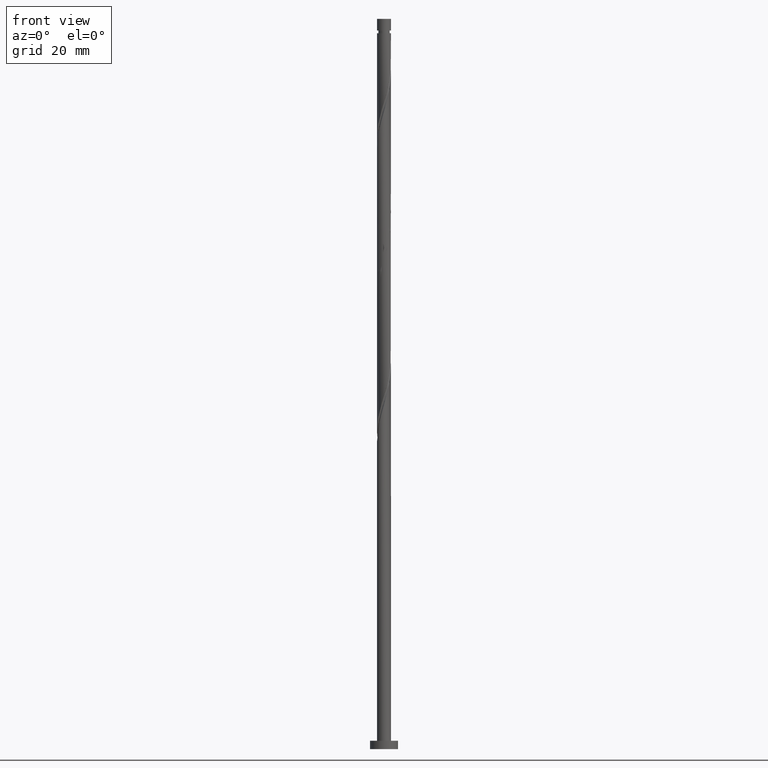
[diagram: clean part render]
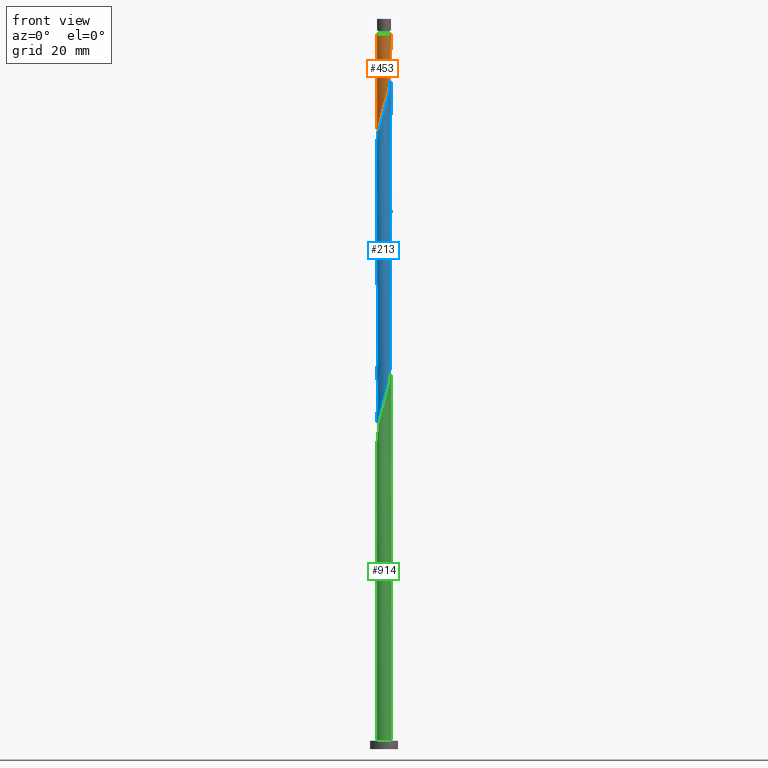
[diagram: same view with three faces highlighted in distinct colors, each labeled with its STEP entity id]
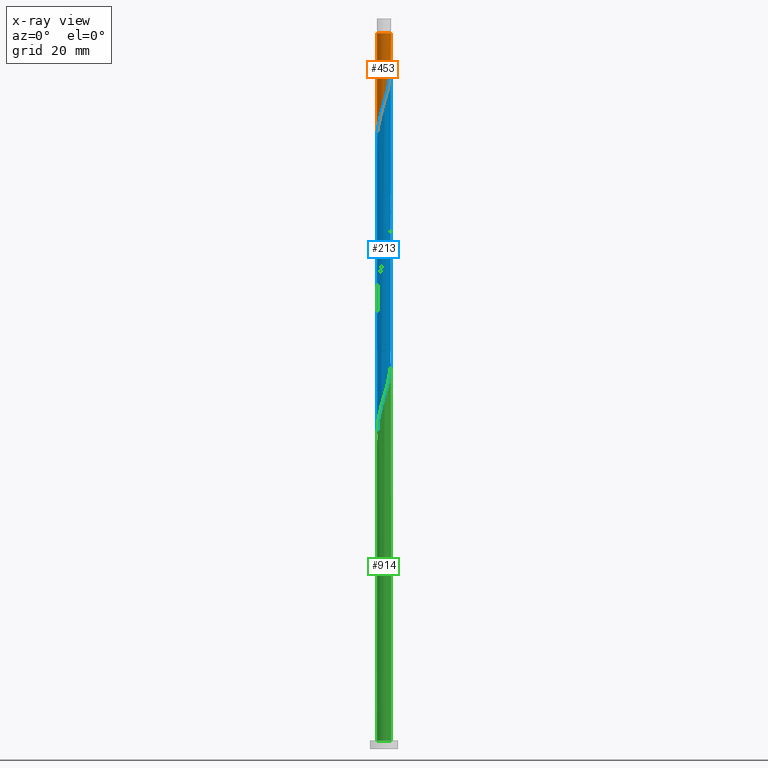
[diagram: x-ray of the same camera — body ghosted, the three highlighted faces saturated]
A machine part, front view with three faces highlighted in distinct colors.
The next image is the same camera in x-ray (body ghosted, the three faces saturated) — at least one of them is partly hidden behind the body in this view.
Their STEP definitions:

[orange] entity #453 — the highlighted cylindrical surface (edge-blend (fillet) strip) has radius 2.5 mm, axis along (-0, -0, -1).
#44 = CARTESIAN_POINT ( 'NONE',  ( 2.500000000000000000, 3.061616997868383141E-16, 261.3000000000000114 ) ) ;
#51 = CARTESIAN_POINT ( 'NONE',  ( 1.389366476707183162, -2.097380685417673529, 236.4484959595072837 ) ) ;
#62 = CARTESIAN_POINT ( 'NONE',  ( -0.7735424213085835277, -2.393945920148759843, 228.9484959595073121 ) ) ;
#65 = DIRECTION ( 'NONE',  ( -0.000000000000000000, -0.000000000000000000, -1.000000000000000000 ) ) ;
#81 = CARTESIAN_POINT ( 'NONE',  ( 1.821243267372625763, -1.735631846680257828, 238.3234959595072837 ) ) ;
#91 = CARTESIAN_POINT ( 'NONE',  ( -2.353958098689209688, -0.8878210494104750161, 221.4484959595073690 ) ) ;
#121 = CARTESIAN_POINT ( 'NONE',  ( -2.097380685417673085, -1.389366476707183162, 223.3234959595073121 ) ) ;
#178 = CARTESIAN_POINT ( 'NONE',  ( 1.511241513231559530, 1.991519291567518168, 252.3859959595073406 ) ) ;
#187 = CARTESIAN_POINT ( 'NONE',  ( 2.161795315762410574, -1.286851179782860344, 240.1984959595073121 ) ) ;
#195 = CARTESIAN_POINT ( 'NONE',  ( 1.030196800545722269, 2.277870617955584542, 254.2609959595072837 ) ) ;
#257 = CARTESIAN_POINT ( 'NONE',  ( -2.499999999999980460, 0.000000000000000000, 256.1359959595073406 ) ) ;
#270 = CARTESIAN_POINT ( 'NONE',  ( -2.499276151735351004, -0.06015577584021881280, 218.6359959595073121 ) ) ;
#302 = AXIS2_PLACEMENT_3D ( 'NONE', #1445, #65, #1298 ) ;
#335 = CARTESIAN_POINT ( 'NONE',  ( 2.506054079851240068, -0.2214450157980394629, 243.9484959595072837 ) ) ;
#344 = CARTESIAN_POINT ( 'NONE',  ( 2.423228161154336036, 0.6147888084444756984, 246.7609959595073121 ) ) ;
#363 = CARTESIAN_POINT ( 'NONE',  ( -1.286851179782860344, -2.161795315762410574, 227.0734959595073406 ) ) ;
#372 = CARTESIAN_POINT ( 'NONE',  ( 2.492498223619460163, 0.3417565674784763807, 245.8234959595072553 ) ) ;
#421 = EDGE_LOOP ( 'NONE', ( #671, #679, #1316, #1452, #1533, #539 ) ) ;
#453 = ADVANCED_FACE ( 'NONE', ( #1448 ), #636, .T. ) ;
#471 = CARTESIAN_POINT ( 'NONE',  ( 2.097380685417673529, 1.389366476707182718, 249.5734959595072837 ) ) ;
#490 = CARTESIAN_POINT ( 'NONE',  ( -1.916506266048965124, -1.605304872039904129, 224.2609959595073406 ) ) ;
#502 = CARTESIAN_POINT ( 'NONE',  ( 2.225669392053442053, 1.138593763058828978, 248.6359959595072837 ) ) ;
#508 = DIRECTION ( 'NONE',  ( -0.000000000000000000, -0.000000000000000000, -1.000000000000000000 ) ) ;
#513 = CARTESIAN_POINT ( 'NONE',  ( 2.500000000000000000, 3.061616997868383141E-16, 218.2093101398807846 ) ) ;
#535 = CARTESIAN_POINT ( 'NONE',  ( -2.500000000000000000, 0.000000000000000000, 261.3000000000000114 ) ) ;
#537 = EDGE_CURVE ( 'NONE', #1781, #828, #590, .T. ) ;
#539 = ORIENTED_EDGE ( 'NONE', *, *, #1469, .F. ) ;
#577 =( BOUNDED_CURVE ( )  B_SPLINE_CURVE ( 2, ( #1178, #1722, #195, #1740, #178, #606, #1450, #471, #502, #1714, #344, #372, #1020, #335, #1326, #1313, #1428, #187, #752, #81, #630, #51, #613, #1051, #1163, #896, #1442, #760, #1305, #62, #622, #363, #1171, #1732, #490, #121, #963, #91, #1633, #678, #270, #1798, #929 ),
 .UNSPECIFIED., .F., .T. ) 
 B_SPLINE_CURVE_WITH_KNOTS ( ( 3, 2, 2, 2, 2, 2, 2, 2, 2, 2, 2, 2, 2, 2, 2, 2, 2, 2, 2, 2, 2, 3 ),
 ( 0.2500000000000014988, 0.2589285714285728957, 0.2678571428571441815, 0.2767857142857155783, 0.2857142857142869197, 0.2946428571428582610, 0.3035714285714296023, 0.3125000000000009992, 0.3214285714285723405, 0.3303571428571436819, 0.3392857142857150787, 0.3482142857142863646, 0.3571428571428577614, 0.3660714285714290472, 0.3750000000000004441, 0.3839285714285718409, 0.3928571428571431268, 0.4017857142857145236, 0.4107142857142858094, 0.4196428571428572063, 0.4285714285714285476, 0.4295303401299219170 ),
 .UNSPECIFIED. ) 
 CURVE ( )  GEOMETRIC_REPRESENTATION_ITEM ( )  RATIONAL_B_SPLINE_CURVE ( ( 0.9090909090909402579, 0.9033747362666172398, 0.9090909090909412571, 0.9033747362666162406, 0.9090909090909412571, 0.9033747362666162406, 0.9090909090909412571, 0.9033747362666162406, 0.9090909090909412571, 0.9033747362666162406, 0.9090909090909412571, 0.9033747362666162406, 0.9090909090909412571, 0.9033747362666162406, 0.9090909090909412571, 0.9033747362666162406, 0.9090909090909412571, 0.9033747362666162406, 0.9090909090909412571, 0.9033747362666162406, 0.9090909090909412571, 0.9033747362666162406, 0.9090909090909412571, 0.9033747362666162406, 0.9090909090909412571, 0.9033747362666162406, 0.9090909090909412571, 0.9033747362666162406, 0.9090909090909412571, 0.9033747362666162406, 0.9090909090909412571, 0.9033747362666162406, 0.9090909090909412571, 0.9033747362666162406, 0.9090909090909412571, 0.9033747362666162406, 0.9090909090909412571, 0.9033747362666162406, 0.9090909090909412571, 0.9033747362666162406, 0.9090909090909412571, 0.9084770030214831538, 0.9079949616362115172 ) ) 
 REPRESENTATION_ITEM ( '' )  );
#590 = CIRCLE ( 'NONE', #908, 2.499999999999980460 ) ;
#606 = CARTESIAN_POINT ( 'NONE',  ( 1.735631846680258272, 1.821243267372625541, 251.4484959595073121 ) ) ;
#609 = EDGE_CURVE ( 'NONE', #828, #1725, #1311, .T. ) ;
#613 = CARTESIAN_POINT ( 'NONE',  ( 1.138593763058828978, -2.225669392053442053, 235.5109959595073121 ) ) ;
#622 = CARTESIAN_POINT ( 'NONE',  ( -1.030196800545722047, -2.277870617955584986, 228.0109959595073121 ) ) ;
#630 = CARTESIAN_POINT ( 'NONE',  ( 1.605304872039904129, -1.916506266048965790, 237.3859959595072837 ) ) ;
#636 = CYLINDRICAL_SURFACE ( 'NONE', #1595, 2.500000000000000000 ) ;
#660 = CARTESIAN_POINT ( 'NONE',  ( -2.500000000000000888, 5.224020732534109655E-16, 218.4355130374133580 ) ) ;
#671 = ORIENTED_EDGE ( 'NONE', *, *, #1226, .T. ) ;
#678 = CARTESIAN_POINT ( 'NONE',  ( -2.492498223619460163, -0.3417565674784767138, 219.5734959595072837 ) ) ;
#679 = ORIENTED_EDGE ( 'NONE', *, *, #1415, .T. ) ;
#752 = CARTESIAN_POINT ( 'NONE',  ( 1.991519291567518168, -1.511241513231559530, 239.2609959595073406 ) ) ;
#760 = CARTESIAN_POINT ( 'NONE',  ( -0.2214450157980393519, -2.506054079851240068, 230.8234959595072837 ) ) ;
#803 = DIRECTION ( 'NONE',  ( -0.000000000000000000, -0.000000000000000000, -1.000000000000000000 ) ) ;
#828 = VERTEX_POINT ( 'NONE', #257 ) ;
#896 = CARTESIAN_POINT ( 'NONE',  ( 0.3417565674784764918, -2.492498223619460163, 232.6984959595072553 ) ) ;
#908 = AXIS2_PLACEMENT_3D ( 'NONE', #1630, #1777, #1342 ) ;
#929 = CARTESIAN_POINT ( 'NONE',  ( -2.500000000000000888, 5.224020732534109655E-16, 218.4355130374133580 ) ) ;
#963 = CARTESIAN_POINT ( 'NONE',  ( -2.225669392053442053, -1.138593763058828978, 222.3859959595073406 ) ) ;
#999 = VECTOR ( 'NONE', #508, 1000.000000000000000 ) ;
#1020 = CARTESIAN_POINT ( 'NONE',  ( 2.499276151735351004, 0.06015577584021860463, 244.8859959595073121 ) ) ;
#1050 = VECTOR ( 'NONE', #1156, 1000.000000000000000 ) ;
#1051 = CARTESIAN_POINT ( 'NONE',  ( 0.8878210494104750161, -2.353958098689209688, 234.5734959595073406 ) ) ;
#1063 = VERTEX_POINT ( 'NONE', #513 ) ;
#1097 = CARTESIAN_POINT ( 'NONE',  ( 0.4974937185533098716, 2.449999999999980638, 256.1359959595072269 ) ) ;
#1156 = DIRECTION ( 'NONE',  ( -0.000000000000000000, -0.000000000000000000, -1.000000000000000000 ) ) ;
#1163 = CARTESIAN_POINT ( 'NONE',  ( 0.6147888084444758094, -2.423228161154336036, 233.6359959595072837 ) ) ;
#1171 = CARTESIAN_POINT ( 'NONE',  ( -1.511241513231559530, -1.991519291567518168, 226.1359959595073690 ) ) ;
#1178 = CARTESIAN_POINT ( 'NONE',  ( 0.4974937185533098716, 2.449999999999980638, 256.1359959595072269 ) ) ;
#1226 = EDGE_CURVE ( 'NONE', #1802, #1781, #1510, .T. ) ;
#1298 = DIRECTION ( 'NONE',  ( -1.000000000000000000, 0.000000000000000000, 0.000000000000000000 ) ) ;
#1305 = CARTESIAN_POINT ( 'NONE',  ( -0.4974937185533113704, -2.450000000000000178, 229.8859959595072837 ) ) ;
#1311 = LINE ( 'NONE', #535, #999 ) ;
#1313 = CARTESIAN_POINT ( 'NONE',  ( 2.393945920148759843, -0.7735424213085836387, 242.0734959595073121 ) ) ;
#1316 = ORIENTED_EDGE ( 'NONE', *, *, #1415, .F. ) ;
#1326 = CARTESIAN_POINT ( 'NONE',  ( 2.450000000000000178, -0.4974937185533114814, 243.0109959595073406 ) ) ;
#1333 = CARTESIAN_POINT ( 'NONE',  ( 0.000000000000000000, 0.000000000000000000, 261.3000000000000114 ) ) ;
#1342 = DIRECTION ( 'NONE',  ( -1.000000000000000000, 0.000000000000000000, 0.000000000000000000 ) ) ;
#1415 = EDGE_CURVE ( 'NONE', #1781, #1063, #1751, .T. ) ;
#1428 = CARTESIAN_POINT ( 'NONE',  ( 2.277870617955584986, -1.030196800545722269, 241.1359959595073406 ) ) ;
#1442 = CARTESIAN_POINT ( 'NONE',  ( 0.06015577584021869484, -2.499276151735351004, 231.7609959595072837 ) ) ;
#1445 = CARTESIAN_POINT ( 'NONE',  ( 0.000000000000000000, 0.000000000000000000, 256.1359959595073406 ) ) ;
#1448 = FACE_OUTER_BOUND ( 'NONE', #421, .T. ) ;
#1450 = CARTESIAN_POINT ( 'NONE',  ( 1.916506266048965790, 1.605304872039904129, 250.5109959595073121 ) ) ;
#1452 = ORIENTED_EDGE ( 'NONE', *, *, #537, .T. ) ;
#1469 = EDGE_CURVE ( 'NONE', #1802, #1725, #577, .T. ) ;
#1500 = CARTESIAN_POINT ( 'NONE',  ( 2.499999999999980460, 3.061616997868371308E-16, 256.1359959595073406 ) ) ;
#1510 = CIRCLE ( 'NONE', #302, 2.499999999999980460 ) ;
#1533 = ORIENTED_EDGE ( 'NONE', *, *, #609, .T. ) ;
#1592 = DIRECTION ( 'NONE',  ( -1.000000000000000000, 0.000000000000000000, 0.000000000000000000 ) ) ;
#1595 = AXIS2_PLACEMENT_3D ( 'NONE', #1333, #803, #1592 ) ;
#1630 = CARTESIAN_POINT ( 'NONE',  ( 0.000000000000000000, 0.000000000000000000, 256.1359959595073406 ) ) ;
#1633 = CARTESIAN_POINT ( 'NONE',  ( -2.423228161154336036, -0.6147888084444758094, 220.5109959595072553 ) ) ;
#1714 = CARTESIAN_POINT ( 'NONE',  ( 2.353958098689209688, 0.8878210494104747941, 247.6984959595072837 ) ) ;
#1722 = CARTESIAN_POINT ( 'NONE',  ( 0.7735424213086269374, 2.393945920148740747, 255.1984959595071700 ) ) ;
#1725 = VERTEX_POINT ( 'NONE', #660 ) ;
#1732 = CARTESIAN_POINT ( 'NONE',  ( -1.735631846680257828, -1.821243267372625763, 225.1984959595073121 ) ) ;
#1740 = CARTESIAN_POINT ( 'NONE',  ( 1.286851179782860566, 2.161795315762410574, 253.3234959595073121 ) ) ;
#1751 = LINE ( 'NONE', #44, #1050 ) ;
#1777 = DIRECTION ( 'NONE',  ( -0.000000000000000000, -0.000000000000000000, -1.000000000000000000 ) ) ;
#1781 = VERTEX_POINT ( 'NONE', #1500 ) ;
#1798 = CARTESIAN_POINT ( 'NONE',  ( -2.500000000000000888, -0.03008224291597894062, 218.5358757256384763 ) ) ;
#1802 = VERTEX_POINT ( 'NONE', #1097 ) ;

[blue] entity #213 — the highlighted cylindrical surface (bore or boss wall) has radius 2.5 mm, axis along (-0, -0, -1).
#6 = EDGE_CURVE ( 'NONE', #770, #831, #1242, .T. ) ;
#11 =( BOUNDED_CURVE ( )  B_SPLINE_CURVE ( 2, ( #736, #1271, #1150, #1427, #1302, #309, #869, #1013, #28, #42, #750, #1169, #1417, #1572, #1729, #170, #317, #327, #862, #1409, #163, #49, #1269, #1702, #59, #1141, #588, #193, #333, #487, #620 ),
 .UNSPECIFIED., .F., .T. ) 
 B_SPLINE_CURVE_WITH_KNOTS ( ( 3, 2, 2, 2, 2, 2, 2, 2, 2, 2, 2, 2, 2, 2, 2, 3 ),
 ( 0.4295303401299219170, 0.4375000000000000000, 0.4464285714285714524, 0.4553571428571428492, 0.4642857142857143016, 0.4732142857142856984, 0.4821428571428571508, 0.4910714285714285476, 0.5000000000000000000, 0.5089285714285713969, 0.5178571428571429047, 0.5267857142857143016, 0.5357142857142856984, 0.5446428571428570953, 0.5535714285714286031, 0.5545303401299218615 ),
 .UNSPECIFIED. ) 
 CURVE ( )  GEOMETRIC_REPRESENTATION_ITEM ( )  RATIONAL_B_SPLINE_CURVE ( ( 0.9079949616362115172, 0.9039886423360744550, 0.9090909090909412571, 0.9033747362666162406, 0.9090909090909412571, 0.9033747362666162406, 0.9090909090909412571, 0.9033747362666162406, 0.9090909090909412571, 0.9033747362666162406, 0.9090909090909412571, 0.9033747362666162406, 0.9090909090909412571, 0.9033747362666162406, 0.9090909090909412571, 0.9033747362666162406, 0.9090909090909412571, 0.9033747362666162406, 0.9090909090909412571, 0.9033747362666162406, 0.9090909090909412571, 0.9033747362666162406, 0.9090909090909412571, 0.9033747362666162406, 0.9090909090909412571, 0.9033747362666162406, 0.9090909090909412571, 0.9033747362666162406, 0.9090909090909412571, 0.9084770030214831538, 0.9079949616362116283 ) ) 
 REPRESENTATION_ITEM ( '' )  );
#18 = CARTESIAN_POINT ( 'NONE',  ( -1.511241513231559530, -1.991519291567518168, 121.1359959595073263 ) ) ;
#26 = CARTESIAN_POINT ( 'NONE',  ( -1.916506266048965124, -1.605304872039904129, 119.2609959595073121 ) ) ;
#28 = CARTESIAN_POINT ( 'NONE',  ( -1.605304872039904573, 1.916506266048965124, 211.1359959595073690 ) ) ;
#33 = CARTESIAN_POINT ( 'NONE',  ( 1.030196800545722269, 2.277870617955584542, 149.2609959595073121 ) ) ;
#40 = CARTESIAN_POINT ( 'NONE',  ( 0.3417565674784764918, -2.492498223619460163, 127.6984959595073263 ) ) ;
#42 = CARTESIAN_POINT ( 'NONE',  ( -1.389366476707183606, 2.097380685417673085, 210.1984959595073121 ) ) ;
#46 = CARTESIAN_POINT ( 'NONE',  ( 1.991519291567518168, -1.511241513231559530, 134.2609959595073121 ) ) ;
#49 = CARTESIAN_POINT ( 'NONE',  ( 1.735631846680258272, 1.821243267372625541, 198.9484959595072837 ) ) ;
#55 = CARTESIAN_POINT ( 'NONE',  ( -1.605304872039907682, -1.916506266048967566, 222.3859959595072553 ) ) ;
#59 = CARTESIAN_POINT ( 'NONE',  ( 2.225669392053442053, 1.138593763058828978, 196.1359959595072837 ) ) ;
#85 = CARTESIAN_POINT ( 'NONE',  ( -1.821243267372628649, -1.735631846680259383, 221.4484959595073121 ) ) ;
#95 = CARTESIAN_POINT ( 'NONE',  ( -0.06015577584021968016, -2.499276151735355000, 228.0109959595072837 ) ) ;
#117 = CARTESIAN_POINT ( 'NONE',  ( -2.499276151735351004, -0.06015577584021881280, 166.1359959595072837 ) ) ;
#123 = CARTESIAN_POINT ( 'NONE',  ( 2.500000000000000000, 3.061616997868383141E-16, 261.3000000000000114 ) ) ;
#126 = CARTESIAN_POINT ( 'NONE',  ( 2.500000000000000888, -1.141821674396741084E-15, 192.1855130374134148 ) ) ;
#154 = CARTESIAN_POINT ( 'NONE',  ( -1.286851179782860344, -2.161795315762410574, 122.0734959595072695 ) ) ;
#163 = CARTESIAN_POINT ( 'NONE',  ( 1.511241513231559530, 1.991519291567518168, 199.8859959595073121 ) ) ;
#168 = CARTESIAN_POINT ( 'NONE',  ( 1.735631846680258272, 1.821243267372625541, 146.4484959595072837 ) ) ;
#170 = CARTESIAN_POINT ( 'NONE',  ( 0.2214450157980389633, 2.506054079851240068, 204.5734959595072837 ) ) ;
#174 = CARTESIAN_POINT ( 'NONE',  ( -2.353958098689209688, -0.8878210494104750161, 116.4484959595073263 ) ) ;
#181 = CARTESIAN_POINT ( 'NONE',  ( 2.499276151735351004, 0.06015577584021860463, 139.8859959595073406 ) ) ;
#193 = CARTESIAN_POINT ( 'NONE',  ( 2.492498223619460163, 0.3417565674784763807, 193.3234959595073121 ) ) ;
#199 = CARTESIAN_POINT ( 'NONE',  ( -2.393945920148763395, -0.7735424213085838607, 217.6984959595073121 ) ) ;
#200 = EDGE_CURVE ( 'NONE', #1725, #831, #11, .T. ) ;
#210 = CARTESIAN_POINT ( 'NONE',  ( -2.450000000000002842, -0.4974937185533112594, 216.7609959595073406 ) ) ;
#213 = ADVANCED_FACE ( 'NONE', ( #341 ), #603, .T. ) ;
#218 = AXIS2_PLACEMENT_3D ( 'NONE', #1035, #886, #732 ) ;
#257 = CARTESIAN_POINT ( 'NONE',  ( -2.499999999999980460, 0.000000000000000000, 256.1359959595073406 ) ) ;
#266 = CARTESIAN_POINT ( 'NONE',  ( 0.3417565674784764918, -2.492498223619460163, 180.1984959595073406 ) ) ;
#274 = CARTESIAN_POINT ( 'NONE',  ( 2.161795315762413683, 1.286851179782861232, 245.8234959595072837 ) ) ;
#276 = CARTESIAN_POINT ( 'NONE',  ( 2.450000000000000178, -0.4974937185533114814, 190.5109959595073406 ) ) ;
#286 = CARTESIAN_POINT ( 'NONE',  ( 0.3417565674784783791, 2.492498223619463271, 253.3234959595073121 ) ) ;
#293 = ORIENTED_EDGE ( 'NONE', *, *, #609, .F. ) ;
#299 = CARTESIAN_POINT ( 'NONE',  ( 1.916506266048965790, 1.605304872039904129, 145.5109959595073121 ) ) ;
#307 = CARTESIAN_POINT ( 'NONE',  ( -2.499276151735351004, -0.06015577584021881280, 113.6359959595073548 ) ) ;
#309 = CARTESIAN_POINT ( 'NONE',  ( -2.161795315762410574, 1.286851179782860344, 213.9484959595073406 ) ) ;
#315 = CARTESIAN_POINT ( 'NONE',  ( 2.161795315762410574, -1.286851179782860344, 135.1984959595073121 ) ) ;
#317 = CARTESIAN_POINT ( 'NONE',  ( 0.4974937185533117034, 2.450000000000000178, 203.6359959595072837 ) ) ;
#319 = VECTOR ( 'NONE', #423, 1000.000000000000000 ) ;
#324 = CARTESIAN_POINT ( 'NONE',  ( 0.4974937185533117034, 2.450000000000000178, 151.1359959595073406 ) ) ;
#327 = CARTESIAN_POINT ( 'NONE',  ( 0.7735424213085836387, 2.393945920148759843, 202.6984959595073121 ) ) ;
#331 = CARTESIAN_POINT ( 'NONE',  ( 0.7735424213085836387, 2.393945920148759843, 150.1984959595073121 ) ) ;
#333 = CARTESIAN_POINT ( 'NONE',  ( 2.499276151735351004, 0.06015577584021860463, 192.3859959595073690 ) ) ;
#338 = CARTESIAN_POINT ( 'NONE',  ( 1.286851179782861232, -2.161795315762413683, 232.6984959595072553 ) ) ;
#341 = FACE_OUTER_BOUND ( 'NONE', #1228, .T. ) ;
#346 = CARTESIAN_POINT ( 'NONE',  ( 2.097380685417676194, -1.389366476707185605, 236.4484959595072553 ) ) ;
#358 = ORIENTED_EDGE ( 'NONE', *, *, #1299, .F. ) ;
#375 = CARTESIAN_POINT ( 'NONE',  ( -0.3417565674784782126, -2.492498223619464159, 227.0734959595072553 ) ) ;
#396 = CARTESIAN_POINT ( 'NONE',  ( -2.225669392053442053, -1.138593763058828978, 169.8859959595073406 ) ) ;
#416 = CARTESIAN_POINT ( 'NONE',  ( -2.393945920148759843, 0.7735424213085833056, 163.3234959595072837 ) ) ;
#423 = DIRECTION ( 'NONE',  ( -0.000000000000000000, -0.000000000000000000, -1.000000000000000000 ) ) ;
#426 = CARTESIAN_POINT ( 'NONE',  ( -0.4974937185533113704, -2.450000000000000178, 177.3859959595073974 ) ) ;
#436 = CARTESIAN_POINT ( 'NONE',  ( 1.605304872039904129, -1.916506266048965790, 132.3859959595072837 ) ) ;
#442 = CARTESIAN_POINT ( 'NONE',  ( -2.225669392053442053, -1.138593763058828978, 117.3859959595073263 ) ) ;
#448 = CARTESIAN_POINT ( 'NONE',  ( -2.423228161154336036, -0.6147888084444758094, 115.5109959595072979 ) ) ;
#457 = CARTESIAN_POINT ( 'NONE',  ( -0.3417565674784769358, 2.492498223619460163, 153.9484959595073406 ) ) ;
#464 = CARTESIAN_POINT ( 'NONE',  ( -0.06015577584021892382, 2.499276151735351004, 153.0109959595073121 ) ) ;
#483 = CARTESIAN_POINT ( 'NONE',  ( 1.916506266048967122, -1.605304872039907682, 235.5109959595073121 ) ) ;
#487 = CARTESIAN_POINT ( 'NONE',  ( 2.500000000000001332, 0.03008224291598200414, 192.2858757256385047 ) ) ;
#495 = CARTESIAN_POINT ( 'NONE',  ( 2.423228161154339144, -0.6147888084444774748, 239.2609959595072553 ) ) ;
#503 = VECTOR ( 'NONE', #1745, 1000.000000000000000 ) ;
#508 = DIRECTION ( 'NONE',  ( -0.000000000000000000, -0.000000000000000000, -1.000000000000000000 ) ) ;
#518 =( BOUNDED_CURVE ( )  B_SPLINE_CURVE ( 2, ( #645, #616, #210, #199, #1753, #1031, #1338, #85, #55, #1165, #1716, #1173, #762, #375, #95, #1464, #1022, #1735, #1580, #338, #1436, #1726, #483, #346, #901, #1307, #495, #1599, #912, #772, #1317, #1665, #979, #274, #967, #551, #1526, #821, #810, #692, #1518, #286, #1084, #1486, #832 ),
 .UNSPECIFIED., .F., .T. ) 
 B_SPLINE_CURVE_WITH_KNOTS ( ( 3, 2, 2, 2, 2, 2, 2, 2, 2, 2, 2, 2, 2, 2, 2, 2, 2, 2, 2, 2, 2, 2, 3 ),
 ( 0.5545303401299215285, 0.5625000000000000000, 0.5714285714285713969, 0.5803571428571427937, 0.5892857142857143016, 0.5982142857142856984, 0.6071428571428572063, 0.6160714285714286031, 0.6250000000000000000, 0.6339285714285713969, 0.6428571428571427937, 0.6517857142857144126, 0.6607142857142858094, 0.6696428571428572063, 0.6785714285714287142, 0.6875000000000000000, 0.6964285714285715079, 0.7053571428571429047, 0.7142857142857144126, 0.7232142857142858094, 0.7321428571428573173, 0.7410714285714287142, 0.7500000000000001110 ),
 .UNSPECIFIED. ) 
 CURVE ( )  GEOMETRIC_REPRESENTATION_ITEM ( )  RATIONAL_B_SPLINE_CURVE ( ( 0.9079949616362177345, 0.9039886423360798950, 0.9090909090909471413, 0.9033747362666220138, 0.9090909090909471413, 0.9033747362666220138, 0.9090909090909471413, 0.9033747362666220138, 0.9090909090909471413, 0.9033747362666220138, 0.9090909090909471413, 0.9033747362666220138, 0.9090909090909471413, 0.9033747362666220138, 0.9090909090909471413, 0.9033747362666220138, 0.9090909090909471413, 0.9033747362666220138, 0.9090909090909471413, 0.9033747362666220138, 0.9090909090909471413, 0.9033747362666220138, 0.9090909090909471413, 0.9033747362666220138, 0.9090909090909471413, 0.9033747362666220138, 0.9090909090909471413, 0.9033747362666220138, 0.9090909090909471413, 0.9033747362666220138, 0.9090909090909471413, 0.9033747362666220138, 0.9090909090909471413, 0.9033747362666220138, 0.9090909090909471413, 0.9033747362666220138, 0.9090909090909471413, 0.9033747362666220138, 0.9090909090909471413, 0.9033747362666220138, 0.9090909090909471413, 0.9033747362666220138, 0.9090909090909471413, 0.9033747362666219027, 0.9090909090909472523 ) ) 
 REPRESENTATION_ITEM ( '' )  );
#534 = CARTESIAN_POINT ( 'NONE',  ( -1.286851179782860344, -2.161795315762410574, 174.5734959595073406 ) ) ;
#535 = CARTESIAN_POINT ( 'NONE',  ( -2.500000000000000000, 0.000000000000000000, 261.3000000000000114 ) ) ;
#545 = CARTESIAN_POINT ( 'NONE',  ( -2.500000000000000888, 8.918149679111802208E-16, 113.4355130374134006 ) ) ;
#551 = CARTESIAN_POINT ( 'NONE',  ( 1.821243267372628649, 1.735631846680259383, 247.6984959595073121 ) ) ;
#553 = CARTESIAN_POINT ( 'NONE',  ( -1.511241513231559530, -1.991519291567518168, 173.6359959595073406 ) ) ;
#563 = CARTESIAN_POINT ( 'NONE',  ( 0.6147888084444758094, -2.423228161154336036, 181.1359959595072837 ) ) ;
#572 = CARTESIAN_POINT ( 'NONE',  ( 1.605304872039904129, -1.916506266048965790, 184.8859959595073406 ) ) ;
#580 = CARTESIAN_POINT ( 'NONE',  ( -1.735631846680257828, -1.821243267372625763, 120.1984959595073263 ) ) ;
#588 = CARTESIAN_POINT ( 'NONE',  ( 2.423228161154336036, 0.6147888084444756984, 194.2609959595072837 ) ) ;
#594 = CARTESIAN_POINT ( 'NONE',  ( 2.225669392053442053, 1.138593763058828978, 143.6359959595073121 ) ) ;
#601 = CARTESIAN_POINT ( 'NONE',  ( -2.097380685417673085, -1.389366476707183162, 118.3234959595073121 ) ) ;
#603 = CYLINDRICAL_SURFACE ( 'NONE', #218, 2.500000000000000000 ) ;
#608 = CARTESIAN_POINT ( 'NONE',  ( -0.6147888084444759205, 2.423228161154336036, 154.8859959595073121 ) ) ;
#609 = EDGE_CURVE ( 'NONE', #828, #1725, #1311, .T. ) ;
#616 = CARTESIAN_POINT ( 'NONE',  ( -2.500000000000007105, -0.2512594538147866485, 215.9247499605648102 ) ) ;
#620 = CARTESIAN_POINT ( 'NONE',  ( 2.500000000000000888, -1.141821674396741084E-15, 192.1855130374134148 ) ) ;
#632 = VERTEX_POINT ( 'NONE', #658 ) ;
#645 = CARTESIAN_POINT ( 'NONE',  ( -2.500000000000004441, 1.231376315525889465E-16, 215.0864788816012378 ) ) ;
#658 = CARTESIAN_POINT ( 'NONE',  ( -2.500000000000003997, 1.231376315525889465E-16, 215.0864788816012663 ) ) ;
#660 = CARTESIAN_POINT ( 'NONE',  ( -2.500000000000000888, 5.224020732534109655E-16, 218.4355130374133580 ) ) ;
#662 = VERTEX_POINT ( 'NONE', #545 ) ;
#665 = CARTESIAN_POINT ( 'NONE',  ( 1.389366476707183162, -2.097380685417673529, 183.9484959595072837 ) ) ;
#684 = CARTESIAN_POINT ( 'NONE',  ( -2.506054079851240068, 0.2214450157980390743, 165.1984959595072837 ) ) ;
#692 = CARTESIAN_POINT ( 'NONE',  ( 0.8878210494104774586, 2.353958098689212353, 251.4484959595073121 ) ) ;
#694 = CARTESIAN_POINT ( 'NONE',  ( -0.7735424213085835277, -2.393945920148759843, 176.4484959595073121 ) ) ;
#713 = CARTESIAN_POINT ( 'NONE',  ( -1.821243267372625763, 1.735631846680257162, 159.5734959595072837 ) ) ;
#721 = CARTESIAN_POINT ( 'NONE',  ( 2.353958098689209688, 0.8878210494104747941, 142.6984959595073406 ) ) ;
#722 = EDGE_CURVE ( 'NONE', #828, #1523, #1419, .T. ) ;
#732 = DIRECTION ( 'NONE',  ( -1.000000000000000000, 0.000000000000000000, 0.000000000000000000 ) ) ;
#736 = CARTESIAN_POINT ( 'NONE',  ( -2.500000000000000888, 5.224020732534109655E-16, 218.4355130374133580 ) ) ;
#739 = CARTESIAN_POINT ( 'NONE',  ( -1.991519291567518168, 1.511241513231559086, 160.5109959595073121 ) ) ;
#746 = CARTESIAN_POINT ( 'NONE',  ( -0.8878210494104751271, 2.353958098689209688, 155.8234959595072837 ) ) ;
#750 = CARTESIAN_POINT ( 'NONE',  ( -1.138593763058829422, 2.225669392053441609, 209.2609959595073406 ) ) ;
#762 = CARTESIAN_POINT ( 'NONE',  ( -0.6147888084444773638, -2.423228161154338700, 226.1359959595073690 ) ) ;
#770 = VERTEX_POINT ( 'NONE', #834 ) ;
#772 = CARTESIAN_POINT ( 'NONE',  ( 2.506054079851243177, 0.2214450157980385192, 242.0734959595072837 ) ) ;
#802 = CARTESIAN_POINT ( 'NONE',  ( 2.277870617955584986, -1.030196800545722269, 188.6359959595073121 ) ) ;
#810 = CARTESIAN_POINT ( 'NONE',  ( 1.138593763058831421, 2.225669392053443385, 250.5109959595073121 ) ) ;
#812 = CARTESIAN_POINT ( 'NONE',  ( -2.353958098689209688, -0.8878210494104750161, 168.9484959595072553 ) ) ;
#821 = CARTESIAN_POINT ( 'NONE',  ( 1.389366476707185827, 2.097380685417675750, 249.5734959595073121 ) ) ;
#828 = VERTEX_POINT ( 'NONE', #257 ) ;
#831 = VERTEX_POINT ( 'NONE', #126 ) ;
#832 = CARTESIAN_POINT ( 'NONE',  ( -0.4974937185533988560, 2.450000000000759126, 256.1359959595074542 ) ) ;
#834 = CARTESIAN_POINT ( 'NONE',  ( 2.500000000000000000, 3.061616997868383141E-16, 256.1359959595074542 ) ) ;
#841 = CARTESIAN_POINT ( 'NONE',  ( -2.161795315762410574, 1.286851179782860344, 161.4484959595073121 ) ) ;
#852 = CARTESIAN_POINT ( 'NONE',  ( 2.450000000000000178, -0.4974937185533114814, 138.0109959595073121 ) ) ;
#857 = EDGE_CURVE ( 'NONE', #831, #662, #1355, .T. ) ;
#860 = CARTESIAN_POINT ( 'NONE',  ( -2.500000000000000000, -0.03008224291597874980, 113.5358757256385189 ) ) ;
#862 = CARTESIAN_POINT ( 'NONE',  ( 1.030196800545722269, 2.277870617955584542, 201.7609959595073121 ) ) ;
#869 = CARTESIAN_POINT ( 'NONE',  ( -1.991519291567518168, 1.511241513231559086, 213.0109959595072837 ) ) ;
#874 = CARTESIAN_POINT ( 'NONE',  ( 2.492498223619460163, 0.3417565674784763807, 140.8234959595073406 ) ) ;
#883 = CARTESIAN_POINT ( 'NONE',  ( 2.393945920148759843, -0.7735424213085836387, 137.0734959595072837 ) ) ;
#886 = DIRECTION ( 'NONE',  ( -0.000000000000000000, -0.000000000000000000, -1.000000000000000000 ) ) ;
#901 = CARTESIAN_POINT ( 'NONE',  ( 2.225669392053443385, -1.138593763058831421, 237.3859959595073690 ) ) ;
#912 = CARTESIAN_POINT ( 'NONE',  ( 2.499276151735355000, -0.06015577584021988139, 241.1359959595072553 ) ) ;
#931 = CARTESIAN_POINT ( 'NONE',  ( -2.500000000000000000, 0.000000000000000000, 261.3000000000000114 ) ) ;
#936 = EDGE_CURVE ( 'NONE', #632, #662, #1563, .T. ) ;
#962 = AXIS2_PLACEMENT_3D ( 'NONE', #1520, #1667, #1360 ) ;
#967 = CARTESIAN_POINT ( 'NONE',  ( 1.991519291567521277, 1.511241513231560418, 246.7609959595073406 ) ) ;
#971 = CARTESIAN_POINT ( 'NONE',  ( 2.500000000000000888, -1.141821674396741084E-15, 192.1855130374134148 ) ) ;
#976 = ORIENTED_EDGE ( 'NONE', *, *, #200, .F. ) ;
#979 = CARTESIAN_POINT ( 'NONE',  ( 2.277870617955589427, 1.030196800545722269, 244.8859959595073121 ) ) ;
#981 = CARTESIAN_POINT ( 'NONE',  ( -2.492498223619460163, -0.3417565674784767138, 167.0734959595073121 ) ) ;
#991 = CARTESIAN_POINT ( 'NONE',  ( 0.06015577584021869484, -2.499276151735351004, 126.7609959595073263 ) ) ;
#998 = CARTESIAN_POINT ( 'NONE',  ( -2.492498223619460163, -0.3417565674784767138, 114.5734959595072837 ) ) ;
#999 = VECTOR ( 'NONE', #508, 1000.000000000000000 ) ;
#1013 = CARTESIAN_POINT ( 'NONE',  ( -1.821243267372625763, 1.735631846680257162, 212.0734959595072837 ) ) ;
#1017 = CARTESIAN_POINT ( 'NONE',  ( -1.605304872039904573, 1.916506266048965124, 158.6359959595073690 ) ) ;
#1022 = CARTESIAN_POINT ( 'NONE',  ( 0.4974937185533111483, -2.450000000000002842, 229.8859959595072553 ) ) ;
#1030 = ORIENTED_EDGE ( 'NONE', *, *, #722, .T. ) ;
#1031 = CARTESIAN_POINT ( 'NONE',  ( -2.161795315762413683, -1.286851179782861454, 219.5734959595073121 ) ) ;
#1035 = CARTESIAN_POINT ( 'NONE',  ( 0.000000000000000000, 0.000000000000000000, 261.3000000000000114 ) ) ;
#1084 = CARTESIAN_POINT ( 'NONE',  ( 0.06015577584022003405, 2.499276151735354556, 254.2609959595072269 ) ) ;
#1104 = CARTESIAN_POINT ( 'NONE',  ( 2.500000000000001332, -0.2512594538147975287, 191.3472419584497572 ) ) ;
#1116 = CARTESIAN_POINT ( 'NONE',  ( 2.161795315762410574, -1.286851179782860344, 187.6984959595073690 ) ) ;
#1124 = CARTESIAN_POINT ( 'NONE',  ( 0.06015577584021869484, -2.499276151735351004, 179.2609959595072837 ) ) ;
#1133 = CARTESIAN_POINT ( 'NONE',  ( -0.2214450157980393519, -2.506054079851240068, 125.8234959595072837 ) ) ;
#1138 = CARTESIAN_POINT ( 'NONE',  ( -1.138593763058829422, 2.225669392053441609, 156.7609959595073121 ) ) ;
#1141 = CARTESIAN_POINT ( 'NONE',  ( 2.353958098689209688, 0.8878210494104747941, 195.1984959595072553 ) ) ;
#1150 = CARTESIAN_POINT ( 'NONE',  ( -2.450000000000000178, 0.4974937185533112594, 216.7609959595073121 ) ) ;
#1165 = CARTESIAN_POINT ( 'NONE',  ( -1.389366476707185605, -2.097380685417675750, 223.3234959595072269 ) ) ;
#1169 = CARTESIAN_POINT ( 'NONE',  ( -0.8878210494104751271, 2.353958098689209688, 208.3234959595073406 ) ) ;
#1173 = CARTESIAN_POINT ( 'NONE',  ( -0.8878210494104766815, -2.353958098689213241, 225.1984959595072837 ) ) ;
#1211 = CARTESIAN_POINT ( 'NONE',  ( 0.8878210494104750161, -2.353958098689209688, 182.0734959595072837 ) ) ;
#1228 = EDGE_LOOP ( 'NONE', ( #293, #1030, #358, #1773, #1770, #1587, #1357, #976 ) ) ;
#1233 = CARTESIAN_POINT ( 'NONE',  ( -1.916506266048965124, -1.605304872039904129, 171.7609959595073406 ) ) ;
#1242 = LINE ( 'NONE', #123, #319 ) ;
#1254 = CARTESIAN_POINT ( 'NONE',  ( 1.991519291567518168, -1.511241513231559530, 186.7609959595072837 ) ) ;
#1261 = CARTESIAN_POINT ( 'NONE',  ( 1.511241513231559530, 1.991519291567518168, 147.3859959595073121 ) ) ;
#1267 = CARTESIAN_POINT ( 'NONE',  ( 1.389366476707183162, -2.097380685417673529, 131.4484959595072837 ) ) ;
#1269 = CARTESIAN_POINT ( 'NONE',  ( 1.916506266048965790, 1.605304872039904129, 198.0109959595072837 ) ) ;
#1271 = CARTESIAN_POINT ( 'NONE',  ( -2.500000000000000444, 0.2512594538148004153, 217.5972419584497857 ) ) ;
#1276 = CARTESIAN_POINT ( 'NONE',  ( 1.138593763058828978, -2.225669392053442053, 130.5109959595073121 ) ) ;
#1283 = CARTESIAN_POINT ( 'NONE',  ( 2.097380685417673529, 1.389366476707182718, 144.5734959595073121 ) ) ;
#1291 = CARTESIAN_POINT ( 'NONE',  ( 2.506054079851240068, -0.2214450157980394629, 138.9484959595073121 ) ) ;
#1299 = EDGE_CURVE ( 'NONE', #632, #1523, #518, .T. ) ;
#1302 = CARTESIAN_POINT ( 'NONE',  ( -2.277870617955585875, 1.030196800545721603, 214.8859959595072837 ) ) ;
#1307 = CARTESIAN_POINT ( 'NONE',  ( 2.353958098689213241, -0.8878210494104766815, 238.3234959595072553 ) ) ;
#1311 = LINE ( 'NONE', #535, #999 ) ;
#1317 = CARTESIAN_POINT ( 'NONE',  ( 2.450000000000002842, 0.4974937185533110373, 243.0109959595073121 ) ) ;
#1335 = CARTESIAN_POINT ( 'NONE',  ( -0.4974937185533988560, 2.450000000000759126, 256.1359959595074542 ) ) ;
#1338 = CARTESIAN_POINT ( 'NONE',  ( -1.991519291567521277, -1.511241513231560640, 220.5109959595072837 ) ) ;
#1355 =( BOUNDED_CURVE ( )  B_SPLINE_CURVE ( 2, ( #971, #1104, #276, #1656, #802, #1116, #1254, #1805, #572, #665, #1508, #1211, #563, #266, #1124, #1776, #426, #694, #1380, #534, #553, #1786, #1233, #1638, #396, #812, #1497, #981, #117, #684, #1794, #416, #1529, #841, #739, #713, #1017, #1554, #1138, #746, #608, #457, #464, #1570, #324, #331, #33, #1430, #1261, #168, #299, #1283, #594, #721, #1400, #874, #181, #1291, #852, #883, #1691, #315, #46, #1676, #436, #1267, #1276, #1546, #1423, #40, #991, #1133, #1539, #1684, #1707, #154, #18, #580, #26, #601, #442, #174, #448, #998, #307, #860, #1407 ),
 .UNSPECIFIED., .F., .T. ) 
 B_SPLINE_CURVE_WITH_KNOTS ( ( 3, 2, 2, 2, 2, 2, 2, 2, 2, 2, 2, 2, 2, 2, 2, 2, 2, 2, 2, 2, 2, 2, 2, 2, 2, 2, 2, 2, 2, 2, 2, 2, 2, 2, 2, 2, 2, 2, 2, 2, 2, 2, 2, 3 ),
 ( 0.5545303401299218615, 0.5625000000000000000, 0.5714285714285713969, 0.5803571428571429047, 0.5892857142857143016, 0.5982142857142856984, 0.6071428571428570953, 0.6160714285714286031, 0.6250000000000000000, 0.6339285714285713969, 0.6428571428571429047, 0.6517857142857143016, 0.6607142857142856984, 0.6696428571428570953, 0.6785714285714286031, 0.6875000000000000000, 0.6964285714285713969, 0.7053571428571429047, 0.7142857142857143016, 0.7232142857142856984, 0.7321428571428570953, 0.7410714285714286031, 0.7500000000000000000, 0.7589285714285713969, 0.7678571428571429047, 0.7767857142857143016, 0.7857142857142856984, 0.7946428571428570953, 0.8035714285714286031, 0.8125000000000000000, 0.8214285714285713969, 0.8303571428571429047, 0.8392857142857143016, 0.8482142857142856984, 0.8571428571428570953, 0.8660714285714286031, 0.8750000000000000000, 0.8839285714285713969, 0.8928571428571429047, 0.9017857142857141906, 0.9107142857142855874, 0.9196428571428569843, 0.9285714285714286031, 0.9295303401299219725 ),
 .UNSPECIFIED. ) 
 CURVE ( )  GEOMETRIC_REPRESENTATION_ITEM ( )  RATIONAL_B_SPLINE_CURVE ( ( 0.9079949616362116283, 0.9039886423360743439, 0.9090909090909412571, 0.9033747362666162406, 0.9090909090909412571, 0.9033747362666162406, 0.9090909090909412571, 0.9033747362666162406, 0.9090909090909412571, 0.9033747362666162406, 0.9090909090909412571, 0.9033747362666162406, 0.9090909090909412571, 0.9033747362666162406, 0.9090909090909412571, 0.9033747362666162406, 0.9090909090909412571, 0.9033747362666162406, 0.9090909090909412571, 0.9033747362666162406, 0.9090909090909412571, 0.9033747362666162406, 0.9090909090909412571, 0.9033747362666162406, 0.9090909090909412571, 0.9033747362666162406, 0.9090909090909412571, 0.9033747362666162406, 0.9090909090909412571, 0.9033747362666162406, 0.9090909090909412571, 0.9033747362666162406, 0.9090909090909412571, 0.9033747362666162406, 0.9090909090909412571, 0.9033747362666162406, 0.9090909090909412571, 0.9033747362666162406, 0.9090909090909412571, 0.9033747362666162406, 0.9090909090909412571, 0.9033747362666162406, 0.9090909090909412571, 0.9033747362666162406, 0.9090909090909412571, 0.9033747362666162406, 0.9090909090909412571, 0.9033747362666162406, 0.9090909090909412571, 0.9033747362666162406, 0.9090909090909412571, 0.9033747362666162406, 0.9090909090909412571, 0.9033747362666162406, 0.9090909090909412571, 0.9033747362666162406, 0.9090909090909412571, 0.9033747362666162406, 0.9090909090909412571, 0.9033747362666162406, 0.9090909090909412571, 0.9033747362666162406, 0.9090909090909412571, 0.9033747362666162406, 0.9090909090909412571, 0.9033747362666162406, 0.9090909090909412571, 0.9033747362666162406, 0.9090909090909412571, 0.9033747362666162406, 0.9090909090909412571, 0.9033747362666162406, 0.9090909090909412571, 0.9033747362666162406, 0.9090909090909412571, 0.9033747362666162406, 0.9090909090909412571, 0.9033747362666162406, 0.9090909090909412571, 0.9033747362666162406, 0.9090909090909412571, 0.9033747362666162406, 0.9090909090909412571, 0.9033747362666162406, 0.9090909090909412571, 0.9084770030214830427, 0.9079949616362114062 ) ) 
 REPRESENTATION_ITEM ( '' )  );
#1357 = ORIENTED_EDGE ( 'NONE', *, *, #6, .T. ) ;
#1360 = DIRECTION ( 'NONE',  ( -1.000000000000000000, 0.000000000000000000, 0.000000000000000000 ) ) ;
#1380 = CARTESIAN_POINT ( 'NONE',  ( -1.030196800545722047, -2.277870617955584986, 175.5109959595073406 ) ) ;
#1400 = CARTESIAN_POINT ( 'NONE',  ( 2.423228161154336036, 0.6147888084444756984, 141.7609959595073406 ) ) ;
#1407 = CARTESIAN_POINT ( 'NONE',  ( -2.500000000000000888, 8.918149679111802208E-16, 113.4355130374134148 ) ) ;
#1409 = CARTESIAN_POINT ( 'NONE',  ( 1.286851179782860566, 2.161795315762410574, 200.8234959595072837 ) ) ;
#1417 = CARTESIAN_POINT ( 'NONE',  ( -0.6147888084444759205, 2.423228161154336036, 207.3859959595073121 ) ) ;
#1419 = CIRCLE ( 'NONE', #962, 2.499999999999980460 ) ;
#1423 = CARTESIAN_POINT ( 'NONE',  ( 0.6147888084444758094, -2.423228161154336036, 128.6359959595073406 ) ) ;
#1427 = CARTESIAN_POINT ( 'NONE',  ( -2.393945920148759843, 0.7735424213085833056, 215.8234959595072837 ) ) ;
#1430 = CARTESIAN_POINT ( 'NONE',  ( 1.286851179782860566, 2.161795315762410574, 148.3234959595072837 ) ) ;
#1436 = CARTESIAN_POINT ( 'NONE',  ( 1.511241513231560640, -1.991519291567521277, 233.6359959595073406 ) ) ;
#1464 = CARTESIAN_POINT ( 'NONE',  ( 0.2214450157980386580, -2.506054079851243177, 228.9484959595072837 ) ) ;
#1486 = CARTESIAN_POINT ( 'NONE',  ( -0.2214450157980419331, 2.506054079851244065, 255.1984959595073406 ) ) ;
#1497 = CARTESIAN_POINT ( 'NONE',  ( -2.423228161154336036, -0.6147888084444758094, 168.0109959595073406 ) ) ;
#1508 = CARTESIAN_POINT ( 'NONE',  ( 1.138593763058828978, -2.225669392053442053, 183.0109959595073406 ) ) ;
#1518 = CARTESIAN_POINT ( 'NONE',  ( 0.6147888084444774748, 2.423228161154339144, 252.3859959595072837 ) ) ;
#1520 = CARTESIAN_POINT ( 'NONE',  ( 0.000000000000000000, 0.000000000000000000, 256.1359959595073406 ) ) ;
#1523 = VERTEX_POINT ( 'NONE', #1335 ) ;
#1526 = CARTESIAN_POINT ( 'NONE',  ( 1.605304872039907682, 1.916506266048967122, 248.6359959595072269 ) ) ;
#1529 = CARTESIAN_POINT ( 'NONE',  ( -2.277870617955585875, 1.030196800545721603, 162.3859959595072837 ) ) ;
#1539 = CARTESIAN_POINT ( 'NONE',  ( -0.4974937185533113704, -2.450000000000000178, 124.8859959595073121 ) ) ;
#1546 = CARTESIAN_POINT ( 'NONE',  ( 0.8878210494104750161, -2.353958098689209688, 129.5734959595073121 ) ) ;
#1554 = CARTESIAN_POINT ( 'NONE',  ( -1.389366476707183606, 2.097380685417673085, 157.6984959595073121 ) ) ;
#1563 = LINE ( 'NONE', #931, #503 ) ;
#1570 = CARTESIAN_POINT ( 'NONE',  ( 0.2214450157980389633, 2.506054079851240068, 152.0734959595072837 ) ) ;
#1572 = CARTESIAN_POINT ( 'NONE',  ( -0.3417565674784769358, 2.492498223619460163, 206.4484959595072837 ) ) ;
#1580 = CARTESIAN_POINT ( 'NONE',  ( 1.030196800545722269, -2.277870617955589427, 231.7609959595072837 ) ) ;
#1587 = ORIENTED_EDGE ( 'NONE', *, *, #6, .F. ) ;
#1599 = CARTESIAN_POINT ( 'NONE',  ( 2.492498223619463271, -0.3417565674784783236, 240.1984959595073121 ) ) ;
#1638 = CARTESIAN_POINT ( 'NONE',  ( -2.097380685417673085, -1.389366476707183162, 170.8234959595073406 ) ) ;
#1656 = CARTESIAN_POINT ( 'NONE',  ( 2.393945920148759843, -0.7735424213085836387, 189.5734959595072553 ) ) ;
#1665 = CARTESIAN_POINT ( 'NONE',  ( 2.393945920148763840, 0.7735424213085834166, 243.9484959595072269 ) ) ;
#1667 = DIRECTION ( 'NONE',  ( -0.000000000000000000, -0.000000000000000000, -1.000000000000000000 ) ) ;
#1676 = CARTESIAN_POINT ( 'NONE',  ( 1.821243267372625763, -1.735631846680257828, 133.3234959595073406 ) ) ;
#1684 = CARTESIAN_POINT ( 'NONE',  ( -0.7735424213085835277, -2.393945920148759843, 123.9484959595072979 ) ) ;
#1691 = CARTESIAN_POINT ( 'NONE',  ( 2.277870617955584986, -1.030196800545722269, 136.1359959595073121 ) ) ;
#1702 = CARTESIAN_POINT ( 'NONE',  ( 2.097380685417673529, 1.389366476707182718, 197.0734959595072837 ) ) ;
#1707 = CARTESIAN_POINT ( 'NONE',  ( -1.030196800545722047, -2.277870617955584986, 123.0109959595073263 ) ) ;
#1716 = CARTESIAN_POINT ( 'NONE',  ( -1.138593763058831199, -2.225669392053443385, 224.2609959595072837 ) ) ;
#1725 = VERTEX_POINT ( 'NONE', #660 ) ;
#1726 = CARTESIAN_POINT ( 'NONE',  ( 1.735631846680259383, -1.821243267372628649, 234.5734959595073406 ) ) ;
#1729 = CARTESIAN_POINT ( 'NONE',  ( -0.06015577584021892382, 2.499276151735351004, 205.5109959595073121 ) ) ;
#1735 = CARTESIAN_POINT ( 'NONE',  ( 0.7735424213085835277, -2.393945920148763840, 230.8234959595072837 ) ) ;
#1745 = DIRECTION ( 'NONE',  ( -0.000000000000000000, -0.000000000000000000, -1.000000000000000000 ) ) ;
#1753 = CARTESIAN_POINT ( 'NONE',  ( -2.277870617955589427, -1.030196800545722491, 218.6359959595072553 ) ) ;
#1770 = ORIENTED_EDGE ( 'NONE', *, *, #857, .F. ) ;
#1773 = ORIENTED_EDGE ( 'NONE', *, *, #936, .T. ) ;
#1776 = CARTESIAN_POINT ( 'NONE',  ( -0.2214450157980393519, -2.506054079851240068, 178.3234959595073121 ) ) ;
#1786 = CARTESIAN_POINT ( 'NONE',  ( -1.735631846680257828, -1.821243267372625763, 172.6984959595073121 ) ) ;
#1794 = CARTESIAN_POINT ( 'NONE',  ( -2.450000000000000178, 0.4974937185533112594, 164.2609959595073406 ) ) ;
#1805 = CARTESIAN_POINT ( 'NONE',  ( 1.821243267372625763, -1.735631846680257828, 185.8234959595073121 ) ) ;

[green] entity #914 — the highlighted cylindrical surface (bore or boss wall) has radius 2.5 mm, axis along (-0, -0, -1).
#5 = CARTESIAN_POINT ( 'NONE',  ( 1.030196800545722269, -2.277870617955589427, 179.2609959595072837 ) ) ;
#8 = CARTESIAN_POINT ( 'NONE',  ( 2.500000000000000000, 0.000000000000000000, 3.000000000000000000 ) ) ;
#15 = CARTESIAN_POINT ( 'NONE',  ( 0.3417565674784783791, 2.492498223619463271, 200.8234959595072837 ) ) ;
#23 = CARTESIAN_POINT ( 'NONE',  ( -1.030196800545722491, 2.277870617955589427, 205.5109959595072837 ) ) ;
#31 = CARTESIAN_POINT ( 'NONE',  ( -2.225669392053444273, 1.138593763058831199, 211.1359959595072837 ) ) ;
#35 = CARTESIAN_POINT ( 'NONE',  ( -2.393945920148759843, 0.7735424213085833056, 110.8234959595072837 ) ) ;
#37 = CARTESIAN_POINT ( 'NONE',  ( -1.389366476707185605, -2.097380685417675750, 170.8234959595072837 ) ) ;
#70 = CARTESIAN_POINT ( 'NONE',  ( -1.511241513231560862, 1.991519291567521277, 102.3859959595072979 ) ) ;
#82 = AXIS2_PLACEMENT_3D ( 'NONE', #1414, #729, #1700 ) ;
#105 = CARTESIAN_POINT ( 'NONE',  ( 1.821243267372628649, 1.735631846680259383, 142.6984959595072553 ) ) ;
#115 = CARTESIAN_POINT ( 'NONE',  ( -0.4974937185533107042, 2.450000000000002842, 151.1359959595073121 ) ) ;
#124 = CARTESIAN_POINT ( 'NONE',  ( 0.4974937185533111483, -2.450000000000002842, 124.8859959595072979 ) ) ;
#133 = CARTESIAN_POINT ( 'NONE',  ( -2.500000000000004441, -0.2512594538148025802, 110.9247499605648670 ) ) ;
#142 = CARTESIAN_POINT ( 'NONE',  ( -2.499276151735354556, 0.06015577584021956220, 162.3859959595072553 ) ) ;
#151 = CARTESIAN_POINT ( 'NONE',  ( 0.2214450157980386580, -2.506054079851243177, 176.4484959595072837 ) ) ;
#158 = CARTESIAN_POINT ( 'NONE',  ( 1.511241513231560640, -1.991519291567521277, 181.1359959595072837 ) ) ;
#166 = CARTESIAN_POINT ( 'NONE',  ( -2.097380685417676194, 1.389366476707185605, 210.1984959595072837 ) ) ;
#172 = CARTESIAN_POINT ( 'NONE',  ( -2.492498223619464159, 0.3417565674784781571, 213.9484959595072837 ) ) ;
#208 = ORIENTED_EDGE ( 'NONE', *, *, #1287, .T. ) ;
#217 = CARTESIAN_POINT ( 'NONE',  ( -2.423228161154339144, 0.6147888084444772527, 108.0109959595072979 ) ) ;
#244 = CARTESIAN_POINT ( 'NONE',  ( -0.6147888084444773638, -2.423228161154338700, 121.1359959595072979 ) ) ;
#255 = CARTESIAN_POINT ( 'NONE',  ( 2.506054079851243177, 0.2214450157980385192, 137.0734959595072553 ) ) ;
#261 = ORIENTED_EDGE ( 'NONE', *, *, #294, .F. ) ;
#263 = CARTESIAN_POINT ( 'NONE',  ( 2.225669392053443385, -1.138593763058831421, 132.3859959595073121 ) ) ;
#271 = ORIENTED_EDGE ( 'NONE', *, *, #936, .F. ) ;
#294 = EDGE_CURVE ( 'NONE', #662, #1216, #805, .T. ) ;
#297 = CARTESIAN_POINT ( 'NONE',  ( 2.492498223619463271, -0.3417565674784783236, 187.6984959595072837 ) ) ;
#305 = CARTESIAN_POINT ( 'NONE',  ( -0.4974937185533107042, 2.450000000000002842, 203.6359959595072837 ) ) ;
#313 = CARTESIAN_POINT ( 'NONE',  ( -1.511241513231560862, 1.991519291567521277, 207.3859959595072837 ) ) ;
#321 = CARTESIAN_POINT ( 'NONE',  ( -1.916506266048967566, 1.605304872039907238, 209.2609959595072837 ) ) ;
#325 = EDGE_CURVE ( 'NONE', #1041, #1216, #1703, .T. ) ;
#329 = CARTESIAN_POINT ( 'NONE',  ( -0.8878210494104766815, -2.353958098689213241, 172.6984959595072837 ) ) ;
#343 = AXIS2_PLACEMENT_3D ( 'NONE', #1489, #1059, #1212 ) ;
#354 = CARTESIAN_POINT ( 'NONE',  ( -2.500000000000000000, 0.000000000000000000, 3.000000000000000000 ) ) ;
#366 = CARTESIAN_POINT ( 'NONE',  ( 0.4974937185533118145, 2.450000000000000178, 98.63599595950731214 ) ) ;
#384 = CARTESIAN_POINT ( 'NONE',  ( 1.030196800545722269, -2.277870617955589427, 126.7609959595072979 ) ) ;
#394 = CARTESIAN_POINT ( 'NONE',  ( 1.916506266048967122, -1.605304872039907682, 130.5109959595072837 ) ) ;
#402 = CARTESIAN_POINT ( 'NONE',  ( 1.735631846680259383, -1.821243267372628649, 129.5734959595073121 ) ) ;
#411 = ORIENTED_EDGE ( 'NONE', *, *, #753, .T. ) ;
#412 = CARTESIAN_POINT ( 'NONE',  ( 2.277870617955589427, 1.030196800545722269, 139.8859959595072837 ) ) ;
#424 = CARTESIAN_POINT ( 'NONE',  ( -0.8878210494104766815, -2.353958098689213241, 120.1984959595072837 ) ) ;
#433 = CARTESIAN_POINT ( 'NONE',  ( 1.991519291567521277, 1.511241513231560418, 194.2609959595073121 ) ) ;
#439 = CARTESIAN_POINT ( 'NONE',  ( 2.225669392053443385, -1.138593763058831421, 184.8859959595073406 ) ) ;
#446 = CARTESIAN_POINT ( 'NONE',  ( -0.3417565674784782126, -2.492498223619464159, 174.5734959595073121 ) ) ;
#452 = CARTESIAN_POINT ( 'NONE',  ( -2.277870617955589427, -1.030196800545722491, 166.1359959595073406 ) ) ;
#459 = CARTESIAN_POINT ( 'NONE',  ( -1.991519291567518168, 1.511241513231559086, 108.0109959595072979 ) ) ;
#461 = CARTESIAN_POINT ( 'NONE',  ( -2.506054079851243177, -0.2214450157980387968, 163.3234959595073406 ) ) ;
#469 = CARTESIAN_POINT ( 'NONE',  ( -0.06015577584021892382, 2.499276151735351004, 100.5109959595073263 ) ) ;
#479 = CARTESIAN_POINT ( 'NONE',  ( -0.7735424213085839718, 2.393945920148763395, 99.57349595950729793 ) ) ;
#503 = VECTOR ( 'NONE', #1745, 1000.000000000000000 ) ;
#510 = CARTESIAN_POINT ( 'NONE',  ( -0.4974937185533107042, 2.450000000000002842, 98.63599595950731214 ) ) ;
#523 = CARTESIAN_POINT ( 'NONE',  ( 2.499276151735355000, -0.06015577584021988139, 136.1359959595073406 ) ) ;
#532 = CARTESIAN_POINT ( 'NONE',  ( 2.393945920148763840, 0.7735424213085834166, 138.9484959595073121 ) ) ;
#543 = CARTESIAN_POINT ( 'NONE',  ( 2.353958098689213241, -0.8878210494104766815, 133.3234959595073121 ) ) ;
#545 = CARTESIAN_POINT ( 'NONE',  ( -2.500000000000000888, 8.918149679111802208E-16, 113.4355130374134006 ) ) ;
#559 = ORIENTED_EDGE ( 'NONE', *, *, #1395, .F. ) ;
#560 = CARTESIAN_POINT ( 'NONE',  ( -1.821243267372628649, -1.735631846680259383, 116.4484959595073406 ) ) ;
#569 = CARTESIAN_POINT ( 'NONE',  ( 2.161795315762413683, 1.286851179782861232, 193.3234959595072269 ) ) ;
#578 = CARTESIAN_POINT ( 'NONE',  ( 0.06015577584022003405, 2.499276151735354556, 201.7609959595072837 ) ) ;
#583 = CARTESIAN_POINT ( 'NONE',  ( 2.277870617955589427, 1.030196800545722269, 192.3859959595072269 ) ) ;
#592 = CARTESIAN_POINT ( 'NONE',  ( 0.8878210494104774586, 2.353958098689212353, 198.9484959595073121 ) ) ;
#596 = CARTESIAN_POINT ( 'NONE',  ( -2.161795315762410574, 1.286851179782860344, 108.9484959595073121 ) ) ;
#599 = CARTESIAN_POINT ( 'NONE',  ( -2.097380685417676194, 1.389366476707185605, 157.6984959595071984 ) ) ;
#632 = VERTEX_POINT ( 'NONE', #658 ) ;
#633 = LINE ( 'NONE', #755, #1187 ) ;
#638 = AXIS2_PLACEMENT_3D ( 'NONE', #1245, #675, #1647 ) ;
#640 = CARTESIAN_POINT ( 'NONE',  ( -1.916506266048967566, 1.605304872039907238, 104.2609959595073406 ) ) ;
#655 = CARTESIAN_POINT ( 'NONE',  ( 2.423228161154339144, -0.6147888084444774748, 134.2609959595073121 ) ) ;
#658 = CARTESIAN_POINT ( 'NONE',  ( -2.500000000000003997, 1.231376315525889465E-16, 215.0864788816012663 ) ) ;
#662 = VERTEX_POINT ( 'NONE', #545 ) ;
#663 = CARTESIAN_POINT ( 'NONE',  ( 1.389366476707185827, 2.097380685417675750, 144.5734959595072837 ) ) ;
#666 = CARTESIAN_POINT ( 'NONE',  ( 0.4974937185533118145, 2.450000000000000178, 98.63599595950731214 ) ) ;
#672 = CARTESIAN_POINT ( 'NONE',  ( -2.393945920148763395, -0.7735424213085838607, 112.6984959595072979 ) ) ;
#673 = AXIS2_PLACEMENT_3D ( 'NONE', #1180, #1192, #1055 ) ;
#675 = DIRECTION ( 'NONE',  ( 0.000000000000000000, 0.000000000000000000, 1.000000000000000000 ) ) ;
#682 = CARTESIAN_POINT ( 'NONE',  ( 2.450000000000002842, 0.4974937185533110373, 138.0109959595072837 ) ) ;
#702 = CARTESIAN_POINT ( 'NONE',  ( 2.097380685417676194, -1.389366476707185605, 183.9484959595072837 ) ) ;
#711 = CARTESIAN_POINT ( 'NONE',  ( 1.916506266048967122, -1.605304872039907682, 183.0109959595073121 ) ) ;
#718 = CARTESIAN_POINT ( 'NONE',  ( -1.916506266048967566, 1.605304872039907238, 156.7609959595073121 ) ) ;
#725 = CARTESIAN_POINT ( 'NONE',  ( -0.6147888084444773638, -2.423228161154338700, 173.6359959595072837 ) ) ;
#729 = DIRECTION ( 'NONE',  ( -0.000000000000000000, -0.000000000000000000, -1.000000000000000000 ) ) ;
#737 = CARTESIAN_POINT ( 'NONE',  ( -2.499276151735354556, 0.06015577584021956220, 214.8859959595073121 ) ) ;
#741 = CARTESIAN_POINT ( 'NONE',  ( -0.6147888084444759205, 2.423228161154336036, 102.3859959595073121 ) ) ;
#743 = CARTESIAN_POINT ( 'NONE',  ( -2.225669392053444273, 1.138593763058831199, 106.1359959595072979 ) ) ;
#753 = EDGE_CURVE ( 'NONE', #809, #1444, #968, .T. ) ;
#755 = CARTESIAN_POINT ( 'NONE',  ( -2.500000000000000000, 0.000000000000000000, 261.3000000000000114 ) ) ;
#779 = CARTESIAN_POINT ( 'NONE',  ( -2.492498223619464159, 0.3417565674784781571, 108.9484959595073121 ) ) ;
#782 = CARTESIAN_POINT ( 'NONE',  ( -0.4974937185533107042, 2.450000000000002842, 98.63599595950731214 ) ) ;
#800 = CARTESIAN_POINT ( 'NONE',  ( 1.605304872039907682, 1.916506266048967122, 143.6359959595073121 ) ) ;
#805 =( BOUNDED_CURVE ( )  B_SPLINE_CURVE ( 2, ( #1293, #893, #1161, #35, #1710, #596, #459, #877, #1026, #1583, #1566, #1425, #741, #1285, #469, #1204, #666 ),
 .UNSPECIFIED., .F., .T. ) 
 B_SPLINE_CURVE_WITH_KNOTS ( ( 3, 2, 2, 2, 2, 2, 2, 2, 3 ),
 ( 0.9295303401299219725, 0.9375000000000000000, 0.9464285714285713969, 0.9553571428571429047, 0.9642857142857143016, 0.9732142857142856984, 0.9821428571428570953, 0.9910714285714286031, 1.000000000000000000 ),
 .UNSPECIFIED. ) 
 CURVE ( )  GEOMETRIC_REPRESENTATION_ITEM ( )  RATIONAL_B_SPLINE_CURVE ( ( 0.9079949616362114062, 0.9039886423360744550, 0.9090909090909412571, 0.9033747362666162406, 0.9090909090909412571, 0.9033747362666162406, 0.9090909090909412571, 0.9033747362666162406, 0.9090909090909412571, 0.9033747362666162406, 0.9090909090909412571, 0.9033747362666162406, 0.9090909090909412571, 0.9033747362666162406, 0.9090909090909412571, 0.9033747362666162406, 0.9090909090909412571 ) ) 
 REPRESENTATION_ITEM ( '' )  );
#809 = VERTEX_POINT ( 'NONE', #8 ) ;
#839 = CARTESIAN_POINT ( 'NONE',  ( 1.511241513231560640, -1.991519291567521277, 128.6359959595072837 ) ) ;
#850 = CARTESIAN_POINT ( 'NONE',  ( -2.450000000000002842, -0.4974937185533112594, 164.2609959595073406 ) ) ;
#856 = CARTESIAN_POINT ( 'NONE',  ( 1.605304872039907682, 1.916506266048967122, 196.1359959595073406 ) ) ;
#864 = CARTESIAN_POINT ( 'NONE',  ( -2.492498223619464159, 0.3417565674784781571, 161.4484959595072837 ) ) ;
#866 = FACE_OUTER_BOUND ( 'NONE', #1635, .T. ) ;
#871 = CARTESIAN_POINT ( 'NONE',  ( -2.353958098689213241, 0.8878210494104765704, 212.0734959595072837 ) ) ;
#877 = CARTESIAN_POINT ( 'NONE',  ( -1.821243267372625763, 1.735631846680257162, 107.0734959595073121 ) ) ;
#880 = CARTESIAN_POINT ( 'NONE',  ( -0.06015577584021968016, -2.499276151735355000, 175.5109959595073406 ) ) ;
#888 = CARTESIAN_POINT ( 'NONE',  ( -2.097380685417676194, 1.389366476707185605, 105.1984959595072837 ) ) ;
#893 = CARTESIAN_POINT ( 'NONE',  ( -2.500000000000000888, 0.2512594538148006373, 112.5972419584497857 ) ) ;
#909 = CARTESIAN_POINT ( 'NONE',  ( -2.500000000000003997, 0.03008224291599337005, 214.9861161933760911 ) ) ;
#914 = ADVANCED_FACE ( 'NONE', ( #866 ), #1147, .T. ) ;
#931 = CARTESIAN_POINT ( 'NONE',  ( -2.500000000000000000, 0.000000000000000000, 261.3000000000000114 ) ) ;
#936 = EDGE_CURVE ( 'NONE', #632, #662, #1563, .T. ) ;
#941 = CARTESIAN_POINT ( 'NONE',  ( 1.991519291567521277, 1.511241513231560418, 141.7609959595072837 ) ) ;
#949 = CARTESIAN_POINT ( 'NONE',  ( 0.06015577584022003405, 2.499276151735354556, 149.2609959595072837 ) ) ;
#957 = CARTESIAN_POINT ( 'NONE',  ( -0.3417565674784782126, -2.492498223619464159, 122.0734959595072979 ) ) ;
#968 = CIRCLE ( 'NONE', #638, 2.500000000000000000 ) ;
#987 = CARTESIAN_POINT ( 'NONE',  ( 1.286851179782861232, -2.161795315762413683, 180.1984959595073121 ) ) ;
#996 = CARTESIAN_POINT ( 'NONE',  ( -2.353958098689213241, 0.8878210494104765704, 159.5734959595073121 ) ) ;
#1001 = CARTESIAN_POINT ( 'NONE',  ( 0.4974937185533111483, -2.450000000000002842, 177.3859959595073121 ) ) ;
#1008 = CARTESIAN_POINT ( 'NONE',  ( -0.7735424213085839718, 2.393945920148763395, 204.5734959595073121 ) ) ;
#1015 = CARTESIAN_POINT ( 'NONE',  ( -1.991519291567521277, -1.511241513231560640, 168.0109959595072553 ) ) ;
#1026 = CARTESIAN_POINT ( 'NONE',  ( -1.605304872039904573, 1.916506266048965124, 106.1359959595073263 ) ) ;
#1028 = CARTESIAN_POINT ( 'NONE',  ( -2.500000000000003997, -2.462752631051778929E-16, 110.0864788816012521 ) ) ;
#1039 = CARTESIAN_POINT ( 'NONE',  ( -1.030196800545722491, 2.277870617955589427, 100.5109959595073121 ) ) ;
#1041 = VERTEX_POINT ( 'NONE', #782 ) ;
#1055 = DIRECTION ( 'NONE',  ( 1.000000000000000000, 0.000000000000000000, 0.000000000000000000 ) ) ;
#1059 = DIRECTION ( 'NONE',  ( -3.081487911019582620E-30, -1.387778780781448989E-14, -1.000000000000000000 ) ) ;
#1061 = CARTESIAN_POINT ( 'NONE',  ( -2.500000000000004441, 1.231376315525889465E-16, 215.0864788816012378 ) ) ;
#1073 = ORIENTED_EDGE ( 'NONE', *, *, #1114, .F. ) ;
#1074 = CARTESIAN_POINT ( 'NONE',  ( -0.06015577584021968016, -2.499276151735355000, 123.0109959595072979 ) ) ;
#1092 = CARTESIAN_POINT ( 'NONE',  ( -0.2214450157980383804, 2.506054079851243177, 150.1984959595073121 ) ) ;
#1098 = ORIENTED_EDGE ( 'NONE', *, *, #1309, .F. ) ;
#1102 = CARTESIAN_POINT ( 'NONE',  ( -1.605304872039907682, -1.916506266048967566, 117.3859959595073263 ) ) ;
#1113 = CARTESIAN_POINT ( 'NONE',  ( 0.2214450157980386580, -2.506054079851243177, 123.9484959595072837 ) ) ;
#1114 = EDGE_CURVE ( 'NONE', #1368, #1444, #633, .T. ) ;
#1120 = ORIENTED_EDGE ( 'NONE', *, *, #325, .T. ) ;
#1122 = CARTESIAN_POINT ( 'NONE',  ( -1.605304872039907682, -1.916506266048967566, 169.8859959595072837 ) ) ;
#1130 = CARTESIAN_POINT ( 'NONE',  ( 2.393945920148763840, 0.7735424213085834166, 191.4484959595072837 ) ) ;
#1136 = CARTESIAN_POINT ( 'NONE',  ( -1.286851179782861454, 2.161795315762413683, 206.4484959595072553 ) ) ;
#1143 = CARTESIAN_POINT ( 'NONE',  ( -2.161795315762413683, -1.286851179782861454, 167.0734959595072553 ) ) ;
#1147 = CYLINDRICAL_SURFACE ( 'NONE', #82, 2.500000000000000000 ) ;
#1151 = CARTESIAN_POINT ( 'NONE',  ( -2.393945920148763395, -0.7735424213085838607, 165.1984959595073121 ) ) ;
#1158 = DIRECTION ( 'NONE',  ( -0.000000000000000000, -0.000000000000000000, -1.000000000000000000 ) ) ;
#1161 = CARTESIAN_POINT ( 'NONE',  ( -2.450000000000000178, 0.4974937185533112594, 111.7609959595073263 ) ) ;
#1180 = CARTESIAN_POINT ( 'NONE',  ( 0.000000000000000000, 0.000000000000000000, 3.000000000000000000 ) ) ;
#1187 = VECTOR ( 'NONE', #1158, 1000.000000000000000 ) ;
#1192 = DIRECTION ( 'NONE',  ( 0.000000000000000000, 0.000000000000000000, 1.000000000000000000 ) ) ;
#1200 = CARTESIAN_POINT ( 'NONE',  ( 2.492498223619463271, -0.3417565674784783236, 135.1984959595073121 ) ) ;
#1204 = CARTESIAN_POINT ( 'NONE',  ( 0.2214450157980389633, 2.506054079851240068, 99.57349595950731214 ) ) ;
#1209 = CARTESIAN_POINT ( 'NONE',  ( 0.8878210494104774586, 2.353958098689212353, 146.4484959595072553 ) ) ;
#1212 = DIRECTION ( 'NONE',  ( 0.000000000000000000, 1.000000000000000000, -1.665334536937734811E-14 ) ) ;
#1216 = VERTEX_POINT ( 'NONE', #366 ) ;
#1221 = CARTESIAN_POINT ( 'NONE',  ( -0.7735424213085839718, 2.393945920148763395, 152.0734959595072837 ) ) ;
#1231 = CARTESIAN_POINT ( 'NONE',  ( -2.161795315762413683, -1.286851179782861454, 114.5734959595072837 ) ) ;
#1243 = CARTESIAN_POINT ( 'NONE',  ( -1.991519291567521277, -1.511241513231560640, 115.5109959595073121 ) ) ;
#1245 = CARTESIAN_POINT ( 'NONE',  ( 0.000000000000000000, 0.000000000000000000, 3.000000000000000000 ) ) ;
#1251 = CARTESIAN_POINT ( 'NONE',  ( 2.423228161154339144, -0.6147888084444774748, 186.7609959595073121 ) ) ;
#1259 = CARTESIAN_POINT ( 'NONE',  ( 1.821243267372628649, 1.735631846680259383, 195.1984959595072837 ) ) ;
#1265 = CARTESIAN_POINT ( 'NONE',  ( 0.7735424213085835277, -2.393945920148763840, 178.3234959595072269 ) ) ;
#1272 = CARTESIAN_POINT ( 'NONE',  ( 1.735631846680259383, -1.821243267372628649, 182.0734959595072553 ) ) ;
#1281 = CARTESIAN_POINT ( 'NONE',  ( 2.353958098689213241, -0.8878210494104766815, 185.8234959595072837 ) ) ;
#1285 = CARTESIAN_POINT ( 'NONE',  ( -0.3417565674784769358, 2.492498223619460163, 101.4484959595073263 ) ) ;
#1287 = EDGE_CURVE ( 'NONE', #1444, #809, #1303, .T. ) ;
#1288 = CARTESIAN_POINT ( 'NONE',  ( -2.499276151735354556, 0.06015577584021956220, 109.8859959595072979 ) ) ;
#1293 = CARTESIAN_POINT ( 'NONE',  ( -2.500000000000000888, 8.918149679111802208E-16, 113.4355130374134148 ) ) ;
#1295 = CARTESIAN_POINT ( 'NONE',  ( -1.286851179782861454, 2.161795315762413683, 101.4484959595072837 ) ) ;
#1303 = CIRCLE ( 'NONE', #673, 2.500000000000000000 ) ;
#1309 = EDGE_CURVE ( 'NONE', #1368, #632, #1548, .T. ) ;
#1348 = CARTESIAN_POINT ( 'NONE',  ( 1.138593763058831421, 2.225669392053443385, 145.5109959595073406 ) ) ;
#1358 = CARTESIAN_POINT ( 'NONE',  ( 0.3417565674784783791, 2.492498223619463271, 148.3234959595073406 ) ) ;
#1368 = VERTEX_POINT ( 'NONE', #1585 ) ;
#1369 = CARTESIAN_POINT ( 'NONE',  ( -1.138593763058831199, -2.225669392053443385, 119.2609959595073263 ) ) ;
#1387 = CARTESIAN_POINT ( 'NONE',  ( 2.097380685417676194, -1.389366476707185605, 131.4484959595072837 ) ) ;
#1395 = EDGE_CURVE ( 'NONE', #1041, #1368, #1731, .T. ) ;
#1397 = CARTESIAN_POINT ( 'NONE',  ( 0.6147888084444774748, 2.423228161154339144, 199.8859959595072837 ) ) ;
#1404 = CARTESIAN_POINT ( 'NONE',  ( -1.138593763058831199, -2.225669392053443385, 171.7609959595072837 ) ) ;
#1412 = CARTESIAN_POINT ( 'NONE',  ( -2.423228161154339144, 0.6147888084444772527, 160.5109959595072837 ) ) ;
#1414 = CARTESIAN_POINT ( 'NONE',  ( 0.000000000000000000, 0.000000000000000000, 261.3000000000000114 ) ) ;
#1420 = CARTESIAN_POINT ( 'NONE',  ( -2.423228161154339144, 0.6147888084444772527, 213.0109959595072837 ) ) ;
#1425 = CARTESIAN_POINT ( 'NONE',  ( -0.8878210494104751271, 2.353958098689209688, 103.3234959595073121 ) ) ;
#1434 = CARTESIAN_POINT ( 'NONE',  ( -2.353958098689213241, 0.8878210494104765704, 107.0734959595073406 ) ) ;
#1444 = VERTEX_POINT ( 'NONE', #354 ) ;
#1489 = CARTESIAN_POINT ( 'NONE',  ( 0.000000000000000000, 0.000000000000000000, 98.63599595950734056 ) ) ;
#1495 = CARTESIAN_POINT ( 'NONE',  ( 0.7735424213085835277, -2.393945920148763840, 125.8234959595072553 ) ) ;
#1505 = CARTESIAN_POINT ( 'NONE',  ( -1.511241513231560862, 1.991519291567521277, 154.8859959595073121 ) ) ;
#1536 = CARTESIAN_POINT ( 'NONE',  ( 1.389366476707185827, 2.097380685417675750, 197.0734959595072553 ) ) ;
#1544 = CARTESIAN_POINT ( 'NONE',  ( 2.499276151735355000, -0.06015577584021988139, 188.6359959595072553 ) ) ;
#1548 =( BOUNDED_CURVE ( )  B_SPLINE_CURVE ( 2, ( #1792, #133, #1636, #672, #1760, #1231, #1243, #560, #1102, #1803, #1369, #424, #244, #957, #1074, #1113, #124, #1495, #384, #1654, #839, #402, #394, #1387, #263, #543, #655, #1200, #523, #255, #682, #532, #412, #1626, #941, #105, #800, #663, #1348, #1209, #1774, #1358, #949, #1092, #115, #1221, #1784, #1645, #1505, #1704, #718, #599, #1698, #996, #1412, #864, #142, #461, #850, #1151, #452, #1143, #1015, #1568, #1122, #37, #1404, #329, #725, #446, #880, #151, #1001, #1265, #5, #987, #158, #1272, #711, #702, #439, #1281, #1251, #297, #1544, #1559, #1673, #1130, #583, #569, #433, #1259, #856, #1536, #1689, #592, #1397, #15, #578, #1682, #305, #1008, #23, #1136, #313, #1551, #321, #166, #31, #871, #1420, #172, #737, #909, #1061 ),
 .UNSPECIFIED., .F., .T. ) 
 B_SPLINE_CURVE_WITH_KNOTS ( ( 3, 2, 2, 2, 2, 2, 2, 2, 2, 2, 2, 2, 2, 2, 2, 2, 2, 2, 2, 2, 2, 2, 2, 2, 2, 2, 2, 2, 2, 2, 2, 2, 2, 2, 2, 2, 2, 2, 2, 2, 2, 2, 2, 2, 2, 2, 2, 2, 2, 2, 2, 2, 2, 2, 2, 2, 2, 3 ),
 ( 0.05453034012992204194, 0.06250000000000000000, 0.07142857142857139685, 0.08035714285714290472, 0.08928571428571430157, 0.09821428571428569843, 0.1071428571428570953, 0.1160714285714286031, 0.1250000000000000000, 0.1339285714285713969, 0.1428571428571429047, 0.1517857142857143016, 0.1607142857142856984, 0.1696428571428570953, 0.1785714285714286031, 0.1875000000000000000, 0.1964285714285713969, 0.2053571428571429047, 0.2142857142857143016, 0.2232142857142856984, 0.2321428571428570953, 0.2410714285714286031, 0.2500000000000000000, 0.2589285714285713969, 0.2678571428571429047, 0.2767857142857143016, 0.2857142857142856984, 0.2946428571428570953, 0.3035714285714286031, 0.3125000000000000000, 0.3214285714285713969, 0.3303571428571429047, 0.3392857142857143016, 0.3482142857142856984, 0.3571428571428570953, 0.3660714285714286031, 0.3750000000000000000, 0.3839285714285713969, 0.3928571428571429047, 0.4017857142857143016, 0.4107142857142856984, 0.4196428571428570953, 0.4285714285714286031, 0.4375000000000000000, 0.4464285714285713969, 0.4553571428571429047, 0.4642857142857143016, 0.4732142857142856984, 0.4821428571428570953, 0.4910714285714286031, 0.5000000000000000000, 0.5089285714285713969, 0.5178571428571427937, 0.5267857142857143016, 0.5357142857142856984, 0.5446428571428572063, 0.5535714285714286031, 0.5545303401299215285 ),
 .UNSPECIFIED. ) 
 CURVE ( )  GEOMETRIC_REPRESENTATION_ITEM ( )  RATIONAL_B_SPLINE_CURVE ( ( 0.9079949616362172904, 0.9039886423360802281, 0.9090909090909471413, 0.9033747362666220138, 0.9090909090909471413, 0.9033747362666220138, 0.9090909090909471413, 0.9033747362666220138, 0.9090909090909471413, 0.9033747362666220138, 0.9090909090909471413, 0.9033747362666220138, 0.9090909090909471413, 0.9033747362666220138, 0.9090909090909471413, 0.9033747362666220138, 0.9090909090909471413, 0.9033747362666220138, 0.9090909090909471413, 0.9033747362666220138, 0.9090909090909471413, 0.9033747362666220138, 0.9090909090909471413, 0.9033747362666220138, 0.9090909090909471413, 0.9033747362666220138, 0.9090909090909471413, 0.9033747362666220138, 0.9090909090909471413, 0.9033747362666220138, 0.9090909090909471413, 0.9033747362666220138, 0.9090909090909471413, 0.9033747362666220138, 0.9090909090909471413, 0.9033747362666220138, 0.9090909090909471413, 0.9033747362666220138, 0.9090909090909471413, 0.9033747362666220138, 0.9090909090909471413, 0.9033747362666220138, 0.9090909090909471413, 0.9033747362666220138, 0.9090909090909471413, 0.9033747362666220138, 0.9090909090909471413, 0.9033747362666220138, 0.9090909090909471413, 0.9033747362666220138, 0.9090909090909471413, 0.9033747362666220138, 0.9090909090909471413, 0.9033747362666220138, 0.9090909090909471413, 0.9033747362666220138, 0.9090909090909471413, 0.9033747362666220138, 0.9090909090909471413, 0.9033747362666220138, 0.9090909090909471413, 0.9033747362666220138, 0.9090909090909471413, 0.9033747362666220138, 0.9090909090909471413, 0.9033747362666220138, 0.9090909090909471413, 0.9033747362666220138, 0.9090909090909471413, 0.9033747362666220138, 0.9090909090909471413, 0.9033747362666220138, 0.9090909090909471413, 0.9033747362666220138, 0.9090909090909471413, 0.9033747362666220138, 0.9090909090909471413, 0.9033747362666220138, 0.9090909090909471413, 0.9033747362666220138, 0.9090909090909471413, 0.9033747362666220138, 0.9090909090909471413, 0.9033747362666220138, 0.9090909090909471413, 0.9033747362666220138, 0.9090909090909471413, 0.9033747362666220138, 0.9090909090909471413, 0.9033747362666220138, 0.9090909090909471413, 0.9033747362666220138, 0.9090909090909471413, 0.9033747362666220138, 0.9090909090909471413, 0.9033747362666220138, 0.9090909090909471413, 0.9033747362666220138, 0.9090909090909471413, 0.9033747362666220138, 0.9090909090909471413, 0.9033747362666220138, 0.9090909090909471413, 0.9033747362666220138, 0.9090909090909471413, 0.9033747362666220138, 0.9090909090909471413, 0.9033747362666220138, 0.9090909090909471413, 0.9033747362666220138, 0.9090909090909471413, 0.9033747362666220138, 0.9090909090909471413, 0.9084770030214892600, 0.9079949616362177345 ) ) 
 REPRESENTATION_ITEM ( '' )  );
#1551 = CARTESIAN_POINT ( 'NONE',  ( -1.735631846680259605, 1.821243267372628649, 208.3234959595072553 ) ) ;
#1559 = CARTESIAN_POINT ( 'NONE',  ( 2.506054079851243177, 0.2214450157980385192, 189.5734959595073406 ) ) ;
#1563 = LINE ( 'NONE', #931, #503 ) ;
#1566 = CARTESIAN_POINT ( 'NONE',  ( -1.138593763058829422, 2.225669392053441609, 104.2609959595073548 ) ) ;
#1568 = CARTESIAN_POINT ( 'NONE',  ( -1.821243267372628649, -1.735631846680259383, 168.9484959595073121 ) ) ;
#1575 = CARTESIAN_POINT ( 'NONE',  ( -2.500000000000003997, 0.03008224291597726141, 109.9861161933761622 ) ) ;
#1583 = CARTESIAN_POINT ( 'NONE',  ( -1.389366476707183606, 2.097380685417673085, 105.1984959595072979 ) ) ;
#1585 = CARTESIAN_POINT ( 'NONE',  ( -2.500000000000003997, -2.462752631051778929E-16, 110.0864788816012521 ) ) ;
#1604 = CARTESIAN_POINT ( 'NONE',  ( -1.735631846680259605, 1.821243267372628649, 103.3234959595073121 ) ) ;
#1626 = CARTESIAN_POINT ( 'NONE',  ( 2.161795315762413683, 1.286851179782861232, 140.8234959595072837 ) ) ;
#1635 = EDGE_LOOP ( 'NONE', ( #271, #1098, #1653, #208, #411, #1073, #559, #1120, #261 ) ) ;
#1636 = CARTESIAN_POINT ( 'NONE',  ( -2.450000000000002842, -0.4974937185533112594, 111.7609959595072837 ) ) ;
#1645 = CARTESIAN_POINT ( 'NONE',  ( -1.286851179782861454, 2.161795315762413683, 153.9484959595073121 ) ) ;
#1647 = DIRECTION ( 'NONE',  ( 1.000000000000000000, 0.000000000000000000, 0.000000000000000000 ) ) ;
#1653 = ORIENTED_EDGE ( 'NONE', *, *, #1114, .T. ) ;
#1654 = CARTESIAN_POINT ( 'NONE',  ( 1.286851179782861232, -2.161795315762413683, 127.6984959595072979 ) ) ;
#1673 = CARTESIAN_POINT ( 'NONE',  ( 2.450000000000002842, 0.4974937185533110373, 190.5109959595072837 ) ) ;
#1682 = CARTESIAN_POINT ( 'NONE',  ( -0.2214450157980383804, 2.506054079851243177, 202.6984959595073121 ) ) ;
#1689 = CARTESIAN_POINT ( 'NONE',  ( 1.138593763058831421, 2.225669392053443385, 198.0109959595072553 ) ) ;
#1698 = CARTESIAN_POINT ( 'NONE',  ( -2.225669392053444273, 1.138593763058831199, 158.6359959595072837 ) ) ;
#1700 = DIRECTION ( 'NONE',  ( -1.000000000000000000, 0.000000000000000000, 0.000000000000000000 ) ) ;
#1703 = CIRCLE ( 'NONE', #343, 2.500000000000000000 ) ;
#1704 = CARTESIAN_POINT ( 'NONE',  ( -1.735631846680259605, 1.821243267372628649, 155.8234959595073121 ) ) ;
#1710 = CARTESIAN_POINT ( 'NONE',  ( -2.277870617955585875, 1.030196800545721603, 109.8859959595073263 ) ) ;
#1731 =( BOUNDED_CURVE ( )  B_SPLINE_CURVE ( 2, ( #510, #479, #1039, #1295, #70, #1604, #640, #888, #743, #1434, #217, #779, #1288, #1575, #1028 ),
 .UNSPECIFIED., .F., .T. ) 
 B_SPLINE_CURVE_WITH_KNOTS ( ( 3, 2, 2, 2, 2, 2, 2, 3 ),
 ( 0.000000000000000000, 0.008928571428571396851, 0.01785714285714290472, 0.02678571428571430157, 0.03571428571428569843, 0.04464285714285709528, 0.05357142857142860315, 0.05453034012992204194 ),
 .UNSPECIFIED. ) 
 CURVE ( )  GEOMETRIC_REPRESENTATION_ITEM ( )  RATIONAL_B_SPLINE_CURVE ( ( 0.9090909090909471413, 0.9033747362666220138, 0.9090909090909471413, 0.9033747362666220138, 0.9090909090909471413, 0.9033747362666220138, 0.9090909090909471413, 0.9033747362666220138, 0.9090909090909471413, 0.9033747362666220138, 0.9090909090909471413, 0.9033747362666220138, 0.9090909090909471413, 0.9084770030214889269, 0.9079949616362172904 ) ) 
 REPRESENTATION_ITEM ( '' )  );
#1745 = DIRECTION ( 'NONE',  ( -0.000000000000000000, -0.000000000000000000, -1.000000000000000000 ) ) ;
#1760 = CARTESIAN_POINT ( 'NONE',  ( -2.277870617955589427, -1.030196800545722491, 113.6359959595073263 ) ) ;
#1774 = CARTESIAN_POINT ( 'NONE',  ( 0.6147888084444774748, 2.423228161154339144, 147.3859959595072837 ) ) ;
#1784 = CARTESIAN_POINT ( 'NONE',  ( -1.030196800545722491, 2.277870617955589427, 153.0109959595073121 ) ) ;
#1792 = CARTESIAN_POINT ( 'NONE',  ( -2.500000000000003997, -2.462752631051778929E-16, 110.0864788816012521 ) ) ;
#1803 = CARTESIAN_POINT ( 'NONE',  ( -1.389366476707185605, -2.097380685417675750, 118.3234959595072979 ) ) ;